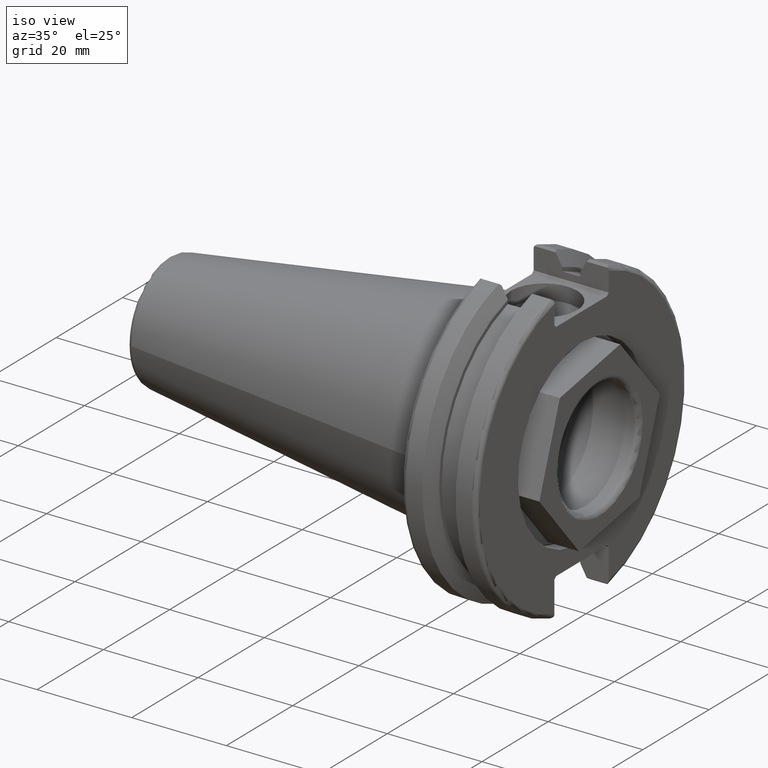
[diagram: clean part render]
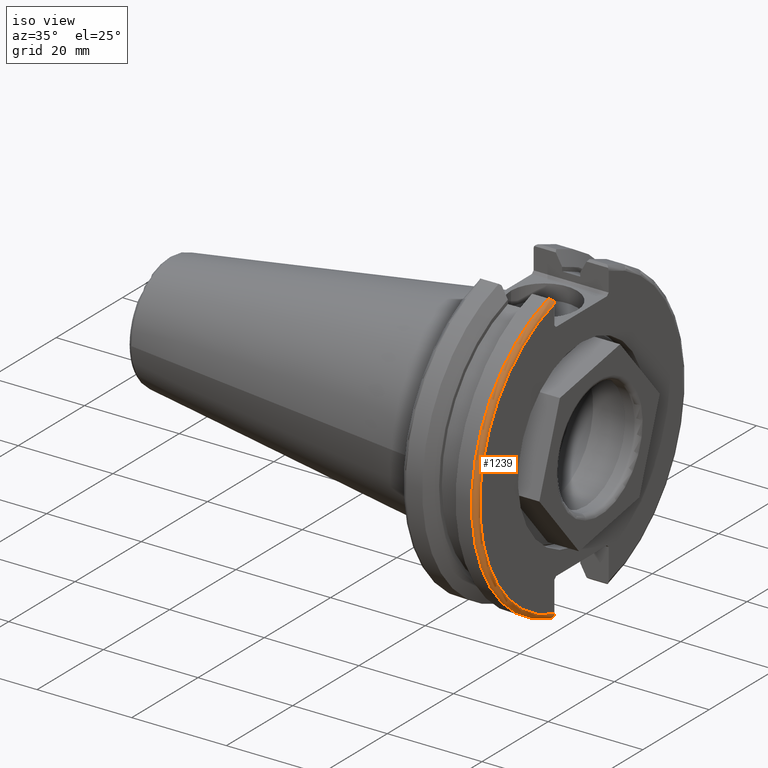
[diagram: same view with one face highlighted and labeled with its STEP entity id]
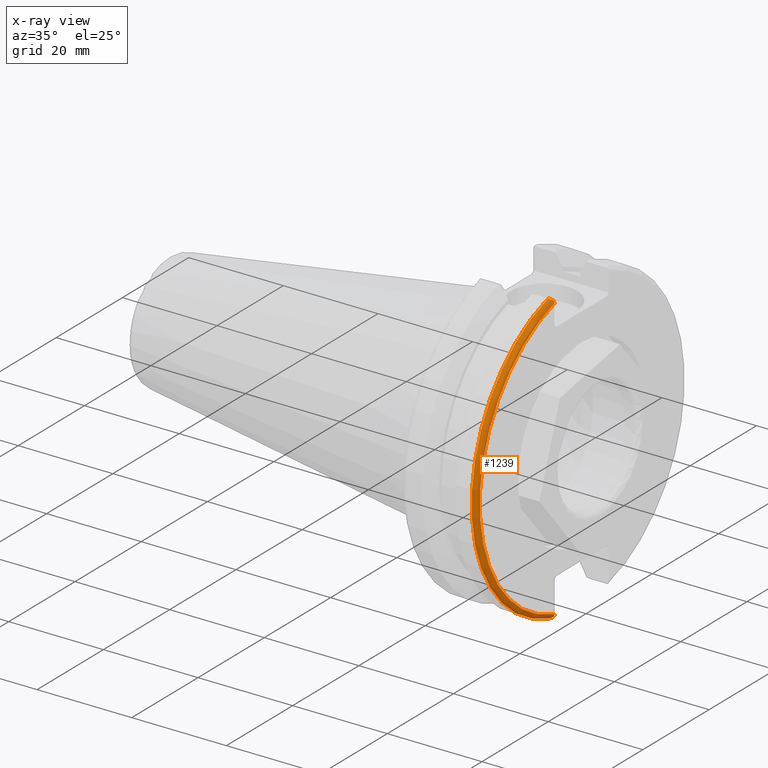
[diagram: x-ray of the same camera — body ghosted, the highlighted face saturated]
A machine part, iso view. The second image highlights one B-rep face of the part: STEP entity #1239.
The next image is the same camera in x-ray: the body ghosted, the highlighted face saturated — about 0% of this face is hidden behind the body in this view.
In plain terms, the highlighted toroidal blend (fillet) surface has major radius 30.75 mm and minor (blend) radius 1 mm.
Its self-contained STEP definition (entity closure, byte-faithful):
#48=B_SPLINE_CURVE_WITH_KNOTS('',3,(#2040,#2041,#2042,#2043,#2044,#2045),
 .UNSPECIFIED.,.F.,.F.,(4,2,4),(0.0977383630915687,0.112311108149119,0.150804350305566),
 .UNSPECIFIED.);
#49=B_SPLINE_CURVE_WITH_KNOTS('',3,(#2047,#2048,#2049,#2050,#2051,#2052),
 .UNSPECIFIED.,.F.,.F.,(4,2,4),(0.452741154494497,0.491581665024872,0.505824174364157),
 .UNSPECIFIED.);
#50=B_SPLINE_CURVE_WITH_KNOTS('',3,(#2054,#2055,#2056,#2057,#2058,#2059,
#2060,#2061),.UNSPECIFIED.,.F.,.F.,(4,2,2,4),(-0.104180282751876,-0.072978474246144,
-0.0343524753874979,0.),.UNSPECIFIED.);
#51=B_SPLINE_CURVE_WITH_KNOTS('',3,(#2064,#2065,#2066,#2067,#2068,#2069,
#2070,#2071),.UNSPECIFIED.,.F.,.F.,(4,2,2,4),(0.,0.0343524753874979,0.0729784742461441,
0.104180282751877),.UNSPECIFIED.);
#61=TOROIDAL_SURFACE('',#1399,30.75,1.);
#145=FACE_OUTER_BOUND('',#225,.T.);
#225=EDGE_LOOP('',(#924,#925,#926,#927,#928,#929));
#492=CIRCLE('',#1398,30.75);
#493=CIRCLE('',#1400,31.75);
#579=VERTEX_POINT('',#2027);
#580=VERTEX_POINT('',#2029);
#584=VERTEX_POINT('',#2039);
#585=VERTEX_POINT('',#2046);
#586=VERTEX_POINT('',#2053);
#587=VERTEX_POINT('',#2062);
#711=EDGE_CURVE('',#580,#579,#492,.T.);
#716=EDGE_CURVE('',#584,#580,#48,.T.);
#717=EDGE_CURVE('',#579,#585,#49,.T.);
#718=EDGE_CURVE('',#585,#586,#50,.T.);
#719=EDGE_CURVE('',#586,#587,#493,.T.);
#720=EDGE_CURVE('',#587,#584,#51,.T.);
#924=ORIENTED_EDGE('',*,*,#716,.T.);
#925=ORIENTED_EDGE('',*,*,#711,.T.);
#926=ORIENTED_EDGE('',*,*,#717,.T.);
#927=ORIENTED_EDGE('',*,*,#718,.T.);
#928=ORIENTED_EDGE('',*,*,#719,.T.);
#929=ORIENTED_EDGE('',*,*,#720,.T.);
#1239=ADVANCED_FACE('',(#145),#61,.T.);
#1398=AXIS2_PLACEMENT_3D('',#2030,#1603,#1604);
#1399=AXIS2_PLACEMENT_3D('',#2038,#1609,#1610);
#1400=AXIS2_PLACEMENT_3D('',#2063,#1611,#1612);
#1603=DIRECTION('center_axis',(-1.,0.,0.));
#1604=DIRECTION('ref_axis',(0.,-1.,1.60812264967664E-16));
#1609=DIRECTION('center_axis',(1.,0.,0.));
#1610=DIRECTION('ref_axis',(0.,0.,-1.));
#1611=DIRECTION('center_axis',(1.,0.,0.));
#1612=DIRECTION('ref_axis',(0.,-1.,1.60812264967664E-16));
#2027=CARTESIAN_POINT('',(19.05,-8.19,29.6392712461019));
#2029=CARTESIAN_POINT('',(19.05,-8.19,-29.6392712461019));
#2030=CARTESIAN_POINT('Origin',(19.05,0.,0.));
#2038=CARTESIAN_POINT('Origin',(18.05,0.,0.));
#2039=CARTESIAN_POINT('',(18.9058722749097,-8.19,-30.1755016258903));
#2040=CARTESIAN_POINT('Ctrl Pts',(18.9058722749097,-8.19,-30.1755016258903));
#2041=CARTESIAN_POINT('Ctrl Pts',(18.9324477233044,-8.19,-30.1299319366157));
#2042=CARTESIAN_POINT('Ctrl Pts',(18.9550700364447,-8.19,-30.0829389905409));
#2043=CARTESIAN_POINT('Ctrl Pts',(19.0210043632013,-8.19,-29.9188002007263));
#2044=CARTESIAN_POINT('Ctrl Pts',(19.05,-8.19,-29.76758205329));
#2045=CARTESIAN_POINT('Ctrl Pts',(19.05,-8.19,-29.6392712461019));
#2046=CARTESIAN_POINT('',(18.9058722749097,-8.19,30.1755016258903));
#2047=CARTESIAN_POINT('Ctrl Pts',(19.05,-8.19,29.6392712461019));
#2048=CARTESIAN_POINT('Ctrl Pts',(19.05,-8.19,29.7687396145364));
#2049=CARTESIAN_POINT('Ctrl Pts',(19.0204855670831,-8.19,29.9212724384851));
#2050=CARTESIAN_POINT('Ctrl Pts',(18.9539643471756,-8.19,30.0852355256475));
#2051=CARTESIAN_POINT('Ctrl Pts',(18.9318163728133,-8.19,30.131014531546));
#2052=CARTESIAN_POINT('Ctrl Pts',(18.9058722749097,-8.19,30.1755016258903));
#2053=CARTESIAN_POINT('',(18.05,-8.67204822802685,30.5427254764662));
#2054=CARTESIAN_POINT('Ctrl Pts',(18.9058722749097,-8.19,30.1755016258903));
#2055=CARTESIAN_POINT('Ctrl Pts',(18.8574463042989,-8.2703682833078,30.2367261024977));
#2056=CARTESIAN_POINT('Ctrl Pts',(18.7926702662319,-8.34909446036477,30.2966996242308));
#2057=CARTESIAN_POINT('Ctrl Pts',(18.6396724190507,-8.48862804755883,30.4029961692546));
#2058=CARTESIAN_POINT('Ctrl Pts',(18.5184414294771,-8.56482138642532,30.4610401774263));
#2059=CARTESIAN_POINT('Ctrl Pts',(18.2983170433775,-8.6471881193939,30.5237870709558));
#2060=CARTESIAN_POINT('Ctrl Pts',(18.1645082512917,-8.67204822802685,30.5427254764662));
#2061=CARTESIAN_POINT('Ctrl Pts',(18.05,-8.67204822802685,30.5427254764662));
#2062=CARTESIAN_POINT('',(18.05,-8.67204822802685,-30.5427254764662));
#2063=CARTESIAN_POINT('Origin',(18.05,0.,0.));
#2064=CARTESIAN_POINT('Ctrl Pts',(18.05,-8.67204822802686,-30.5427254764662));
#2065=CARTESIAN_POINT('Ctrl Pts',(18.1645082512917,-8.67204822802686,-30.5427254764662));
#2066=CARTESIAN_POINT('Ctrl Pts',(18.2983170433775,-8.6471881193939,-30.5237870709558));
#2067=CARTESIAN_POINT('Ctrl Pts',(18.5184414294771,-8.56482138642532,-30.4610401774263));
#2068=CARTESIAN_POINT('Ctrl Pts',(18.6396724190507,-8.48862804755884,-30.4029961692546));
#2069=CARTESIAN_POINT('Ctrl Pts',(18.7926702662319,-8.34909446036477,-30.2966996242308));
#2070=CARTESIAN_POINT('Ctrl Pts',(18.8574463042989,-8.27036828330781,-30.2367261024977));
#2071=CARTESIAN_POINT('Ctrl Pts',(18.9058722749097,-8.19,-30.1755016258903));